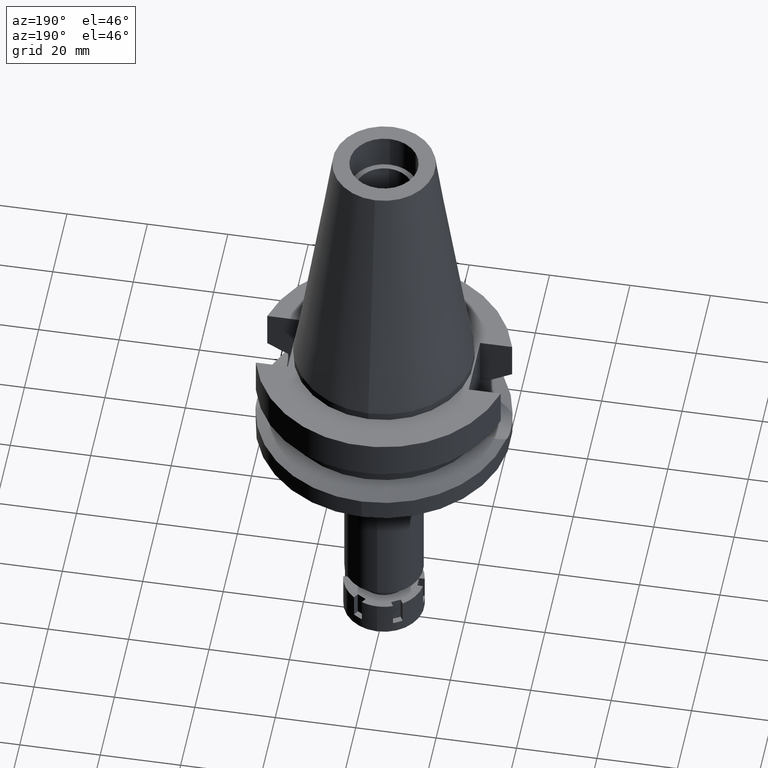
[diagram: clean part render]
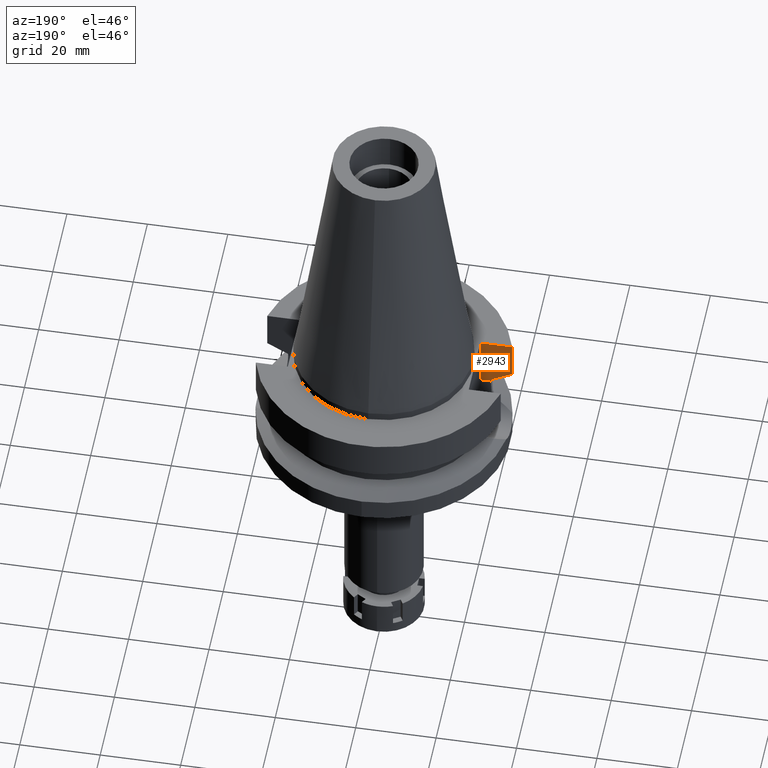
[diagram: same view with one face highlighted and labeled with its STEP entity id]
A machine part, auxiliary view. The second image highlights one B-rep face of the part: STEP entity #2943.
In plain terms, the highlighted planar face has unit normal (0, -1, 0).
Its self-contained STEP definition (entity closure, byte-faithful):
#16 = ORIENTED_EDGE ( 'NONE', *, *, #2916, .F. ) ;
#63 = CARTESIAN_POINT ( 'NONE',  ( -25.24772266958000344, -8.050000000000000711, -14.94999999999999929 ) ) ;
#72 = CARTESIAN_POINT ( 'NONE',  ( -26.83754612978954768, -8.049990816363326473, -13.57774889857640765 ) ) ;
#304 = DIRECTION ( 'NONE',  ( 0.0000000000000000000, 0.0000000000000000000, -1.000000000000000000 ) ) ;
#372 = CARTESIAN_POINT ( 'NONE',  ( -30.45402291385000026, -8.049999277172000589, -11.56551216302999840 ) ) ;
#407 = EDGE_CURVE ( 'NONE', #2677, #3391, #877, .T. ) ;
#468 = AXIS2_PLACEMENT_3D ( 'NONE', #513, #2253, #304 ) ;
#484 = VERTEX_POINT ( 'NONE', #2976 ) ;
#513 = CARTESIAN_POINT ( 'NONE',  ( -22.50000000000000000, -8.050000000000000711, -14.94999999999999929 ) ) ;
#519 = VECTOR ( 'NONE', #2073, 1000.000000000000000 ) ;
#805 = VECTOR ( 'NONE', #828, 999.9999999999998863 ) ;
#828 = DIRECTION ( 'NONE',  ( 1.997452052689988660E-08, -7.556603676652958736E-08, 0.9999999999999970024 ) ) ;
#848 = DIRECTION ( 'NONE',  ( -1.000000000000000000, 3.550916904668000126E-14, 0.0000000000000000000 ) ) ;
#877 = B_SPLINE_CURVE_WITH_KNOTS ( 'NONE', 3,
 ( #372, #2260, #72, #1417 ),
 .UNSPECIFIED., .F., .F.,
 ( 4, 4 ),
 ( 0.0000000000000000000, 1.000000000000000000 ),
 .UNSPECIFIED. ) ;
#895 = CARTESIAN_POINT ( 'NONE',  ( -30.45402291385000026, -8.049999277172000589, -11.56551216302999840 ) ) ;
#918 = ORIENTED_EDGE ( 'NONE', *, *, #1166, .T. ) ;
#1110 = LINE ( 'NONE', #1929, #1343 ) ;
#1166 = EDGE_CURVE ( 'NONE', #3082, #3391, #2846, .T. ) ;
#1343 = VECTOR ( 'NONE', #848, 1000.000000000000000 ) ;
#1375 = ORIENTED_EDGE ( 'NONE', *, *, #2413, .T. ) ;
#1400 = VERTEX_POINT ( 'NONE', #2189 ) ;
#1417 = CARTESIAN_POINT ( 'NONE',  ( -25.24772413202000010, -8.049995413259001253, -14.45229204729999850 ) ) ;
#1443 = EDGE_LOOP ( 'NONE', ( #3580, #3533, #16, #2922, #1375, #918 ) ) ;
#1639 = EDGE_CURVE ( 'NONE', #484, #2779, #2092, .T. ) ;
#1843 = CARTESIAN_POINT ( 'NONE',  ( -22.50000000000000000, -8.050000000000000711, -14.94999999999999929 ) ) ;
#1888 = CARTESIAN_POINT ( 'NONE',  ( -25.24772413202000010, -8.049995413259001253, -14.45229204729999850 ) ) ;
#1929 = CARTESIAN_POINT ( 'NONE',  ( -22.50000000000000000, -8.050000000000000711, -2.000000000000000000 ) ) ;
#1930 = VECTOR ( 'NONE', #2197, 1000.000000000000000 ) ;
#2017 = EDGE_CURVE ( 'NONE', #2677, #1400, #3092, .T. ) ;
#2073 = DIRECTION ( 'NONE',  ( 0.0000000000000000000, 0.0000000000000000000, -1.000000000000000000 ) ) ;
#2092 = LINE ( 'NONE', #2623, #519 ) ;
#2189 = CARTESIAN_POINT ( 'NONE',  ( -30.45402272279000044, -8.050000000000000711, -2.000000000000000000 ) ) ;
#2197 = DIRECTION ( 'NONE',  ( -1.000000000000000000, 1.616208268639000174E-14, -1.034373291929000154E-14 ) ) ;
#2216 = VECTOR ( 'NONE', #3543, 1000.000000000000227 ) ;
#2253 = DIRECTION ( 'NONE',  ( 0.0000000000000000000, -1.000000000000000000, 0.0000000000000000000 ) ) ;
#2260 = CARTESIAN_POINT ( 'NONE',  ( -28.57292326145731209, -8.049998555283025325, -12.61549607173394527 ) ) ;
#2413 = EDGE_CURVE ( 'NONE', #2779, #3082, #3584, .T. ) ;
#2623 = CARTESIAN_POINT ( 'NONE',  ( -22.50000000000000000, -8.050000000000000711, -2.000000000000000000 ) ) ;
#2677 = VERTEX_POINT ( 'NONE', #895 ) ;
#2779 = VERTEX_POINT ( 'NONE', #1843 ) ;
#2846 = LINE ( 'NONE', #2982, #2216 ) ;
#2916 = EDGE_CURVE ( 'NONE', #484, #1400, #1110, .T. ) ;
#2922 = ORIENTED_EDGE ( 'NONE', *, *, #1639, .T. ) ;
#2943 = ADVANCED_FACE ( 'NONE', ( #3341 ), #3650, .F. ) ;
#2976 = CARTESIAN_POINT ( 'NONE',  ( -22.50000000000000000, -8.050000000000000711, -2.000000000000000000 ) ) ;
#2982 = CARTESIAN_POINT ( 'NONE',  ( -25.24772266958000344, -8.050000000000000711, -14.94999999999999929 ) ) ;
#2991 = CARTESIAN_POINT ( 'NONE',  ( -22.50000000000000000, -8.050000000000000711, -14.94999999999999929 ) ) ;
#3082 = VERTEX_POINT ( 'NONE', #63 ) ;
#3092 = LINE ( 'NONE', #3372, #805 ) ;
#3341 = FACE_OUTER_BOUND ( 'NONE', #1443, .T. ) ;
#3372 = CARTESIAN_POINT ( 'NONE',  ( -30.45402291385000026, -8.049999277172000589, -11.56551216302999840 ) ) ;
#3391 = VERTEX_POINT ( 'NONE', #1888 ) ;
#3533 = ORIENTED_EDGE ( 'NONE', *, *, #2017, .T. ) ;
#3543 = DIRECTION ( 'NONE',  ( -2.938346339612055372E-06, 9.215726724121168570E-06, 0.9999999999532181993 ) ) ;
#3580 = ORIENTED_EDGE ( 'NONE', *, *, #407, .F. ) ;
#3584 = LINE ( 'NONE', #2991, #1930 ) ;
#3650 = PLANE ( 'NONE',  #468 ) ;